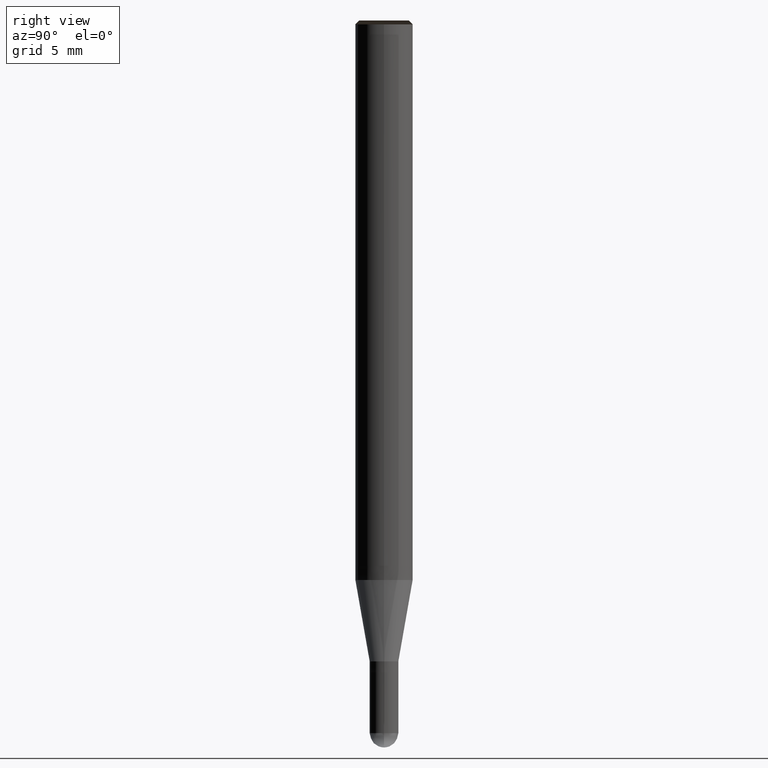
[diagram: clean part render]
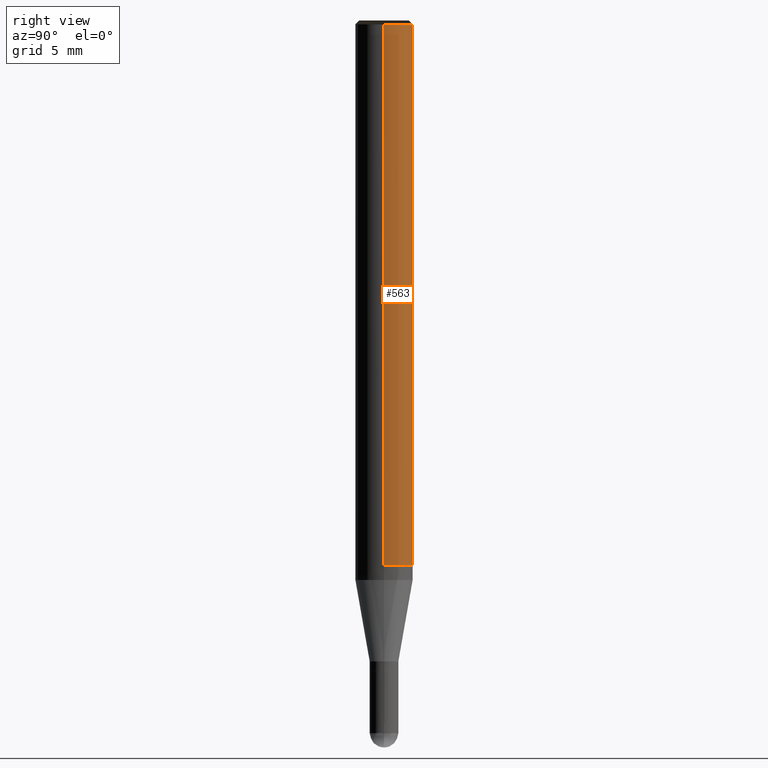
[diagram: same view with one face highlighted and labeled with its STEP entity id]
A machine part, right view. The second image highlights one B-rep face of the part: STEP entity #563.
In plain terms, the highlighted face is a freeform B-spline surface patch.
Its self-contained STEP definition (entity closure, byte-faithful):
#324=CARTESIAN_POINT('',(1.5,0.0,0.0));
#325=CARTESIAN_POINT('',(1.5,1.5,0.0));
#326=CARTESIAN_POINT('',(0.0,1.5,0.0));
#327=CARTESIAN_POINT('',(-1.5,1.5,0.0));
#328=CARTESIAN_POINT('',(-1.5,0.0,0.0));
#329=CARTESIAN_POINT('',(1.5,0.0,28.3));
#330=CARTESIAN_POINT('',(1.5,1.5,28.3));
#331=CARTESIAN_POINT('',(0.0,1.5,28.3));
#332=CARTESIAN_POINT('',(-1.5,1.5,28.3));
#333=CARTESIAN_POINT('',(-1.5,0.0,28.3));
#544=(
BOUNDED_SURFACE()
B_SPLINE_SURFACE(1,2,(
(#324,#325,#326,#327,#328),
(#329,#330,#331,#332,#333)
), .UNSPECIFIED.,.F.,.F.,.F.)
B_SPLINE_SURFACE_WITH_KNOTS((2,2),(3,2,3),(
0.0,1.0),(
0.0,0.5,1.0), .UNSPECIFIED.)
GEOMETRIC_REPRESENTATION_ITEM()
RATIONAL_B_SPLINE_SURFACE(((1.0,0.707106781187,1.0,0.707106781187,1.0),
(1.0,0.707106781187,1.0,0.707106781187,1.0)
))
REPRESENTATION_ITEM('')
SURFACE()
);
#545=(
BOUNDED_CURVE()
B_SPLINE_CURVE(2,(#328,#327,#326,#325,#324),.UNSPECIFIED.,.F.,.F.)
B_SPLINE_CURVE_WITH_KNOTS((3,2,3),
(0.0,0.5,1.0),.UNSPECIFIED.)
CURVE()
GEOMETRIC_REPRESENTATION_ITEM()
RATIONAL_B_SPLINE_CURVE((1.0,0.707106781187,1.0,0.707106781187,1.0))
REPRESENTATION_ITEM('')
);
#546=(
BOUNDED_CURVE()
B_SPLINE_CURVE(1,(#324,#329),.UNSPECIFIED.,.F.,.F.)
B_SPLINE_CURVE_WITH_KNOTS((2,2),
(0.0,1.0),.UNSPECIFIED.)
CURVE()
GEOMETRIC_REPRESENTATION_ITEM()
RATIONAL_B_SPLINE_CURVE((1.0,1.0))
REPRESENTATION_ITEM('')
);
#547=(
BOUNDED_CURVE()
B_SPLINE_CURVE(2,(#329,#330,#331,#332,#333),.UNSPECIFIED.,.F.,.F.)
B_SPLINE_CURVE_WITH_KNOTS((3,2,3),
(0.0,0.5,1.0),.UNSPECIFIED.)
CURVE()
GEOMETRIC_REPRESENTATION_ITEM()
RATIONAL_B_SPLINE_CURVE((1.0,0.707106781187,1.0,0.707106781187,1.0))
REPRESENTATION_ITEM('')
);
#548=(
BOUNDED_CURVE()
B_SPLINE_CURVE(1,(#333,#328),.UNSPECIFIED.,.F.,.F.)
B_SPLINE_CURVE_WITH_KNOTS((2,2),
(0.0,1.0),.UNSPECIFIED.)
CURVE()
GEOMETRIC_REPRESENTATION_ITEM()
RATIONAL_B_SPLINE_CURVE((1.0,1.0))
REPRESENTATION_ITEM('')
);
#549=VERTEX_POINT('',#324);
#550=VERTEX_POINT('',#328);
#551=VERTEX_POINT('',#329);
#552=VERTEX_POINT('',#333);
#553=EDGE_CURVE('',#550,#549,#545,.T.);
#554=EDGE_CURVE('',#549,#551,#546,.T.);
#555=EDGE_CURVE('',#551,#552,#547,.T.);
#556=EDGE_CURVE('',#552,#550,#548,.T.);
#557=ORIENTED_EDGE('',*,*,#553,.T.);
#558=ORIENTED_EDGE('',*,*,#554,.T.);
#559=ORIENTED_EDGE('',*,*,#555,.T.);
#560=ORIENTED_EDGE('',*,*,#556,.T.);
#561=EDGE_LOOP('',(#557,#558,#559,#560));
#562=FACE_OUTER_BOUND('',#561,.T.);
#563=ADVANCED_FACE('',(#562),#544,.T.);